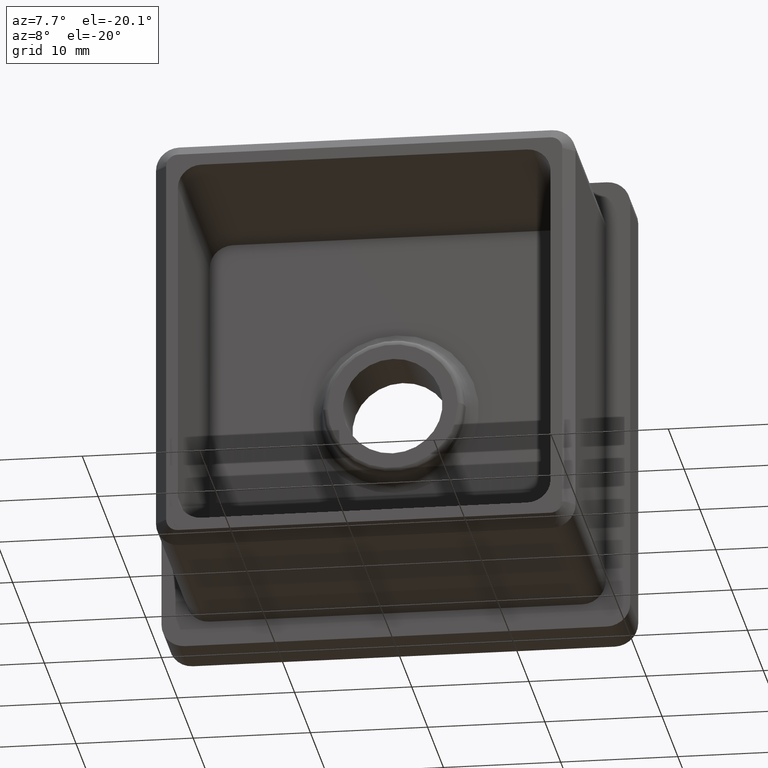
[diagram: clean part render]
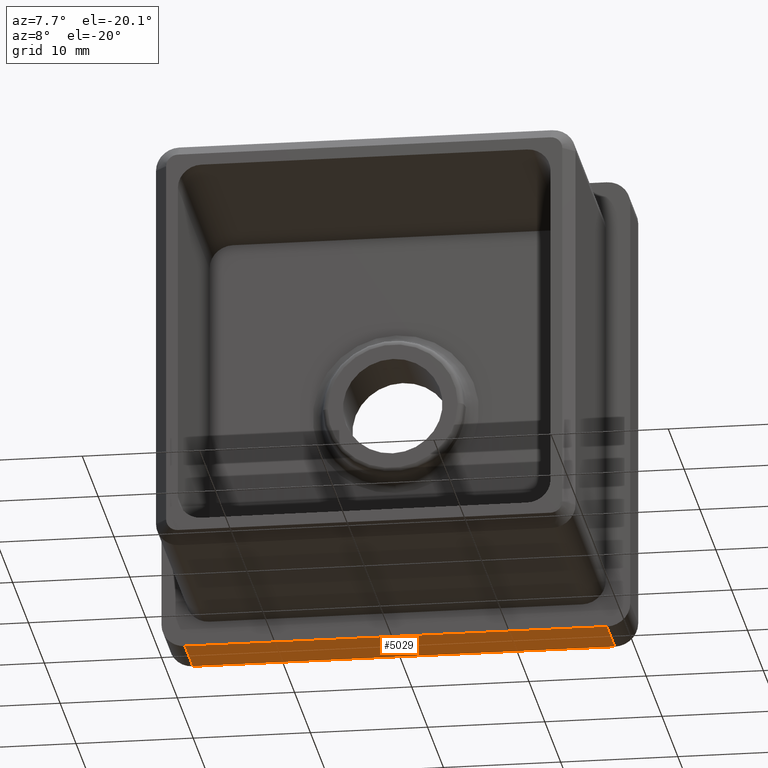
[diagram: same view with one face highlighted and labeled with its STEP entity id]
A machine part, auxiliary view. The second image highlights one B-rep face of the part: STEP entity #5029.
In plain terms, the highlighted planar face has unit normal (0, 0, 1).
Its self-contained STEP definition (entity closure, byte-faithful):
#350 = FACE_OUTER_BOUND ( 'NONE', #7906, .T. ) ;
#410 = LINE ( 'NONE', #11841, #14865 ) ;
#935 = LINE ( 'NONE', #6591, #10182 ) ;
#1182 = EDGE_CURVE ( 'NONE', #11298, #9462, #935, .T. ) ;
#1255 = CARTESIAN_POINT ( 'NONE',  ( 17.99999999999999600, 5.000000000000000000, -19.99999999999999600 ) ) ;
#1705 = DIRECTION ( 'NONE',  ( -0.0000000000000000000, 1.000000000000000000, -0.0000000000000000000 ) ) ;
#3608 = ORIENTED_EDGE ( 'NONE', *, *, #1182, .T. ) ;
#4320 = DIRECTION ( 'NONE',  ( 0.0000000000000000000, -1.000000000000000000, 0.0000000000000000000 ) ) ;
#5029 = ADVANCED_FACE ( 'NONE', ( #350 ), #14278, .F. ) ;
#6284 = ORIENTED_EDGE ( 'NONE', *, *, #14367, .T. ) ;
#6591 = CARTESIAN_POINT ( 'NONE',  ( -18.00000000000000400, 5.000000000000000000, -19.99999999999999600 ) ) ;
#6782 = CARTESIAN_POINT ( 'NONE',  ( 17.99999999999999600, 0.0000000000000000000, -19.99999999999999600 ) ) ;
#7341 = CARTESIAN_POINT ( 'NONE',  ( -18.00000000000000400, 0.0000000000000000000, -19.99999999999999600 ) ) ;
#7747 = CARTESIAN_POINT ( 'NONE',  ( -20.00000000000000400, 5.000000000000000000, -19.99999999999999600 ) ) ;
#7906 = EDGE_LOOP ( 'NONE', ( #11652, #6284, #16466, #3608 ) ) ;
#8578 = LINE ( 'NONE', #14418, #15558 ) ;
#9462 = VERTEX_POINT ( 'NONE', #13204 ) ;
#9473 = DIRECTION ( 'NONE',  ( -1.000000000000000000, -0.0000000000000000000, -0.0000000000000000000 ) ) ;
#9597 = LINE ( 'NONE', #15054, #16166 ) ;
#10182 = VECTOR ( 'NONE', #1705, 1000.000000000000000 ) ;
#11009 = DIRECTION ( 'NONE',  ( -1.000000000000000000, -0.0000000000000000000, -0.0000000000000000000 ) ) ;
#11298 = VERTEX_POINT ( 'NONE', #7341 ) ;
#11652 = ORIENTED_EDGE ( 'NONE', *, *, #13879, .F. ) ;
#11722 = DIRECTION ( 'NONE',  ( 1.000000000000000000, 0.0000000000000000000, -0.0000000000000000000 ) ) ;
#11778 = DIRECTION ( 'NONE',  ( 0.0000000000000000000, 0.0000000000000000000, 1.000000000000000000 ) ) ;
#11841 = CARTESIAN_POINT ( 'NONE',  ( 17.99999999999999600, 5.000000000000000000, -19.99999999999999600 ) ) ;
#12114 = VERTEX_POINT ( 'NONE', #6782 ) ;
#13204 = CARTESIAN_POINT ( 'NONE',  ( -18.00000000000000400, 5.000000000000000000, -19.99999999999999600 ) ) ;
#13879 = EDGE_CURVE ( 'NONE', #15427, #9462, #9597, .T. ) ;
#13998 = EDGE_CURVE ( 'NONE', #12114, #11298, #8578, .T. ) ;
#14278 = PLANE ( 'NONE',  #16525 ) ;
#14367 = EDGE_CURVE ( 'NONE', #15427, #12114, #410, .T. ) ;
#14418 = CARTESIAN_POINT ( 'NONE',  ( -20.00000000000000400, 0.0000000000000000000, -19.99999999999999600 ) ) ;
#14865 = VECTOR ( 'NONE', #4320, 1000.000000000000000 ) ;
#15054 = CARTESIAN_POINT ( 'NONE',  ( -20.00000000000000400, 5.000000000000000000, -19.99999999999999600 ) ) ;
#15427 = VERTEX_POINT ( 'NONE', #1255 ) ;
#15558 = VECTOR ( 'NONE', #9473, 1000.000000000000000 ) ;
#16166 = VECTOR ( 'NONE', #11009, 1000.000000000000000 ) ;
#16466 = ORIENTED_EDGE ( 'NONE', *, *, #13998, .T. ) ;
#16525 = AXIS2_PLACEMENT_3D ( 'NONE', #7747, #11778, #11722 ) ;